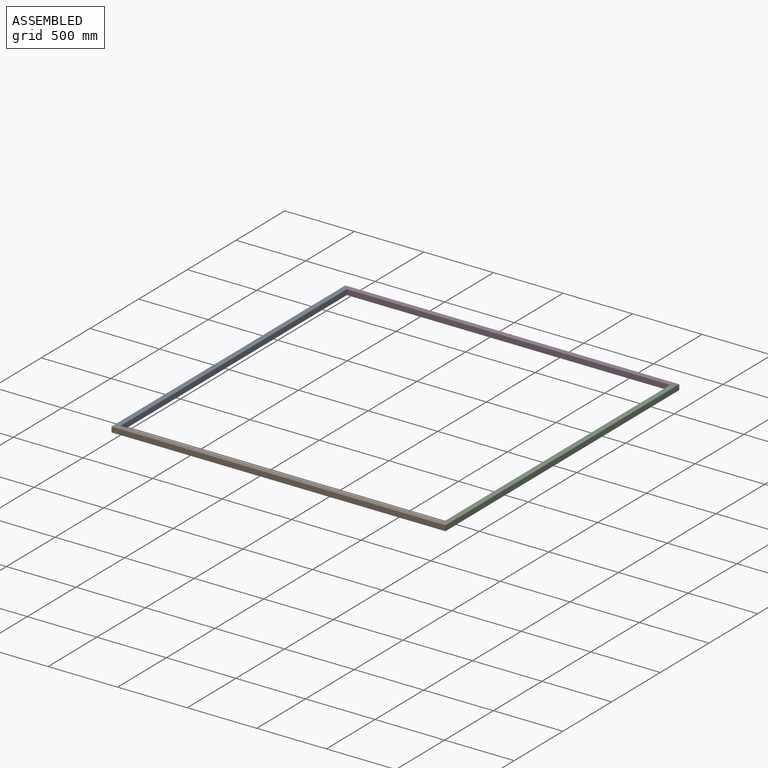
[diagram: assembled view]
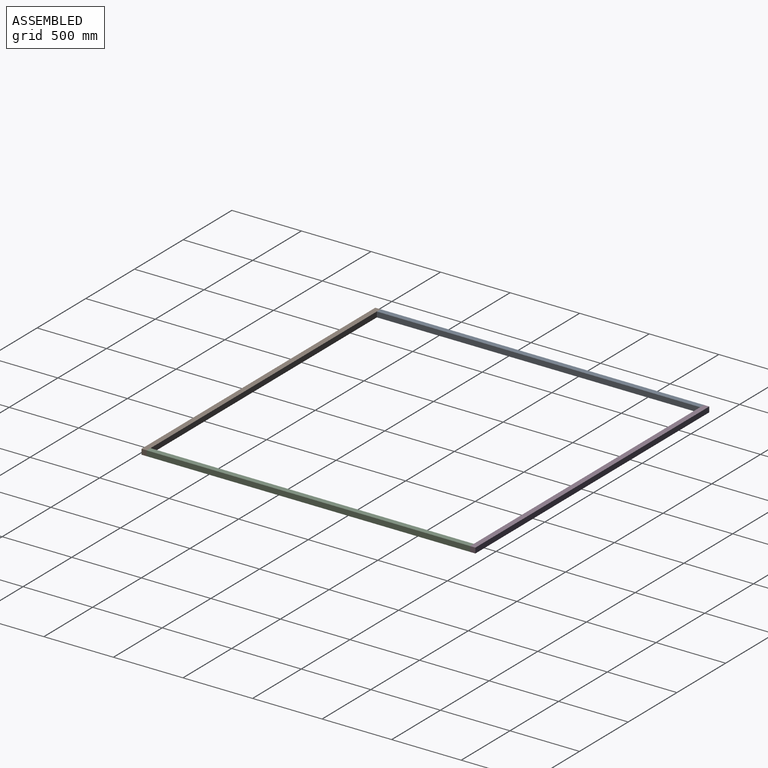
[diagram: assembled view, second angle]
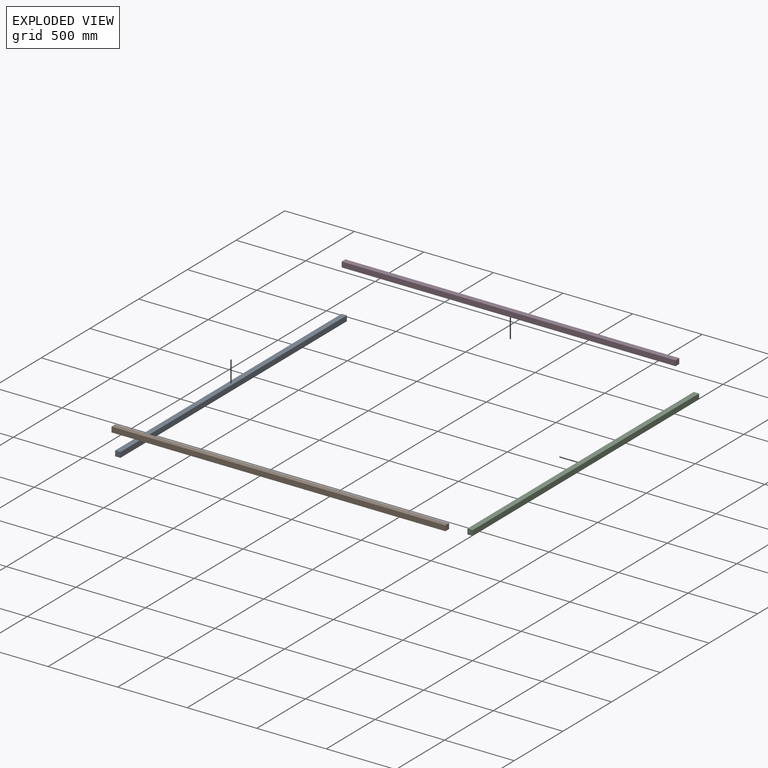
[diagram: exploded view]
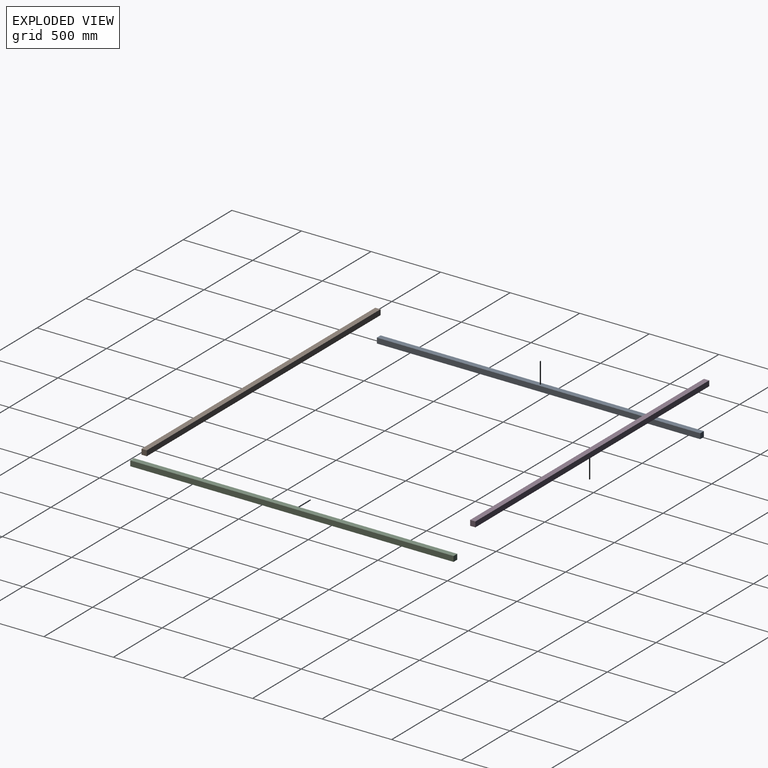
[diagram: exploded view, second angle]
ASSEMBLY  parts=4 mates=3
PART A: 6 faces, bbox 38.1x2324.1x38.1 mm
  f0: plane 38.1x38.1mm, normal (0,1,0), area 1451.6mm2, adj f1,f3,f4,f5
  f1: plane 2324.1x38.1mm, normal (-1,0,0), area 88548.2mm2, adj f0,f2,f3,f4
  f2: plane 38.1x38.1mm, normal (0,-1,0), area 1451.6mm2, adj f1,f3,f4,f5
  f3: plane 2324.1x38.1mm, normal (0,0,1), area 88548.2mm2, adj f0,f1,f2,f5
  f4: plane 2324.1x38.1mm, normal (0,0,-1), area 88548.2mm2, adj f0,f1,f2,f5
  f5: plane 2324.1x38.1mm, normal (1,0,0), area 88548.2mm2, adj f0,f2,f3,f4
PART B: 6 faces, bbox 2400.3x38.1x38.1 mm
  f0: plane 2400.3x38.1mm, normal (0,0,1), area 91451.4mm2, adj f1,f3,f4,f5
  f1: plane 38.1x38.1mm, normal (1,0,0), area 1451.6mm2, adj f0,f2,f4,f5
  f2: plane 2400.3x38.1mm, normal (0,0,-1), area 91451.4mm2, adj f1,f3,f4,f5
  f3: plane 38.1x38.1mm, normal (-1,0,0), area 1451.6mm2, adj f0,f2,f4,f5
  f4: plane 2400.3x38.1mm, normal (0,-1,0), area 91451.4mm2, adj f0,f1,f2,f3
  f5: plane 2400.3x38.1mm, normal (0,1,0), area 91451.4mm2, adj f0,f1,f2,f3
PART C: same geometry as A
PART D: same geometry as B
PLACE A t=(-2382.52,0,0)mm
PLACE B t=(-20.32,0,0)mm
PLACE C t=(-20.32,0,0)mm
PLACE D t=(-20.32,2362.2,0)mm
MATE fastened B.f0 <-> A.f3  axis (0,0,1) through (-1.27,-2381.25,38.1)mm
MATE fastened B.f1 <-> C.f5  axis (1,0,0) through (2399.03,-2381.25,38.1)mm
MATE fastened C.f3 <-> D.f0  axis (0,0,1) through (2399.03,-57.15,38.1)mm
